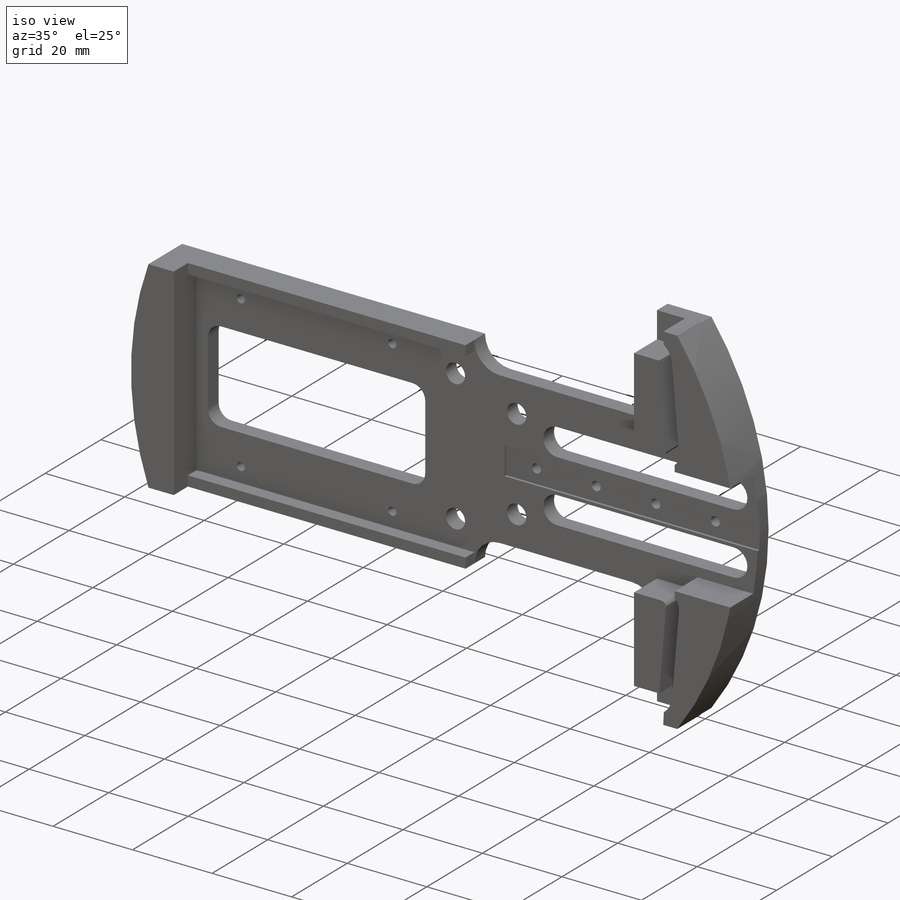
[diagram: iso view]
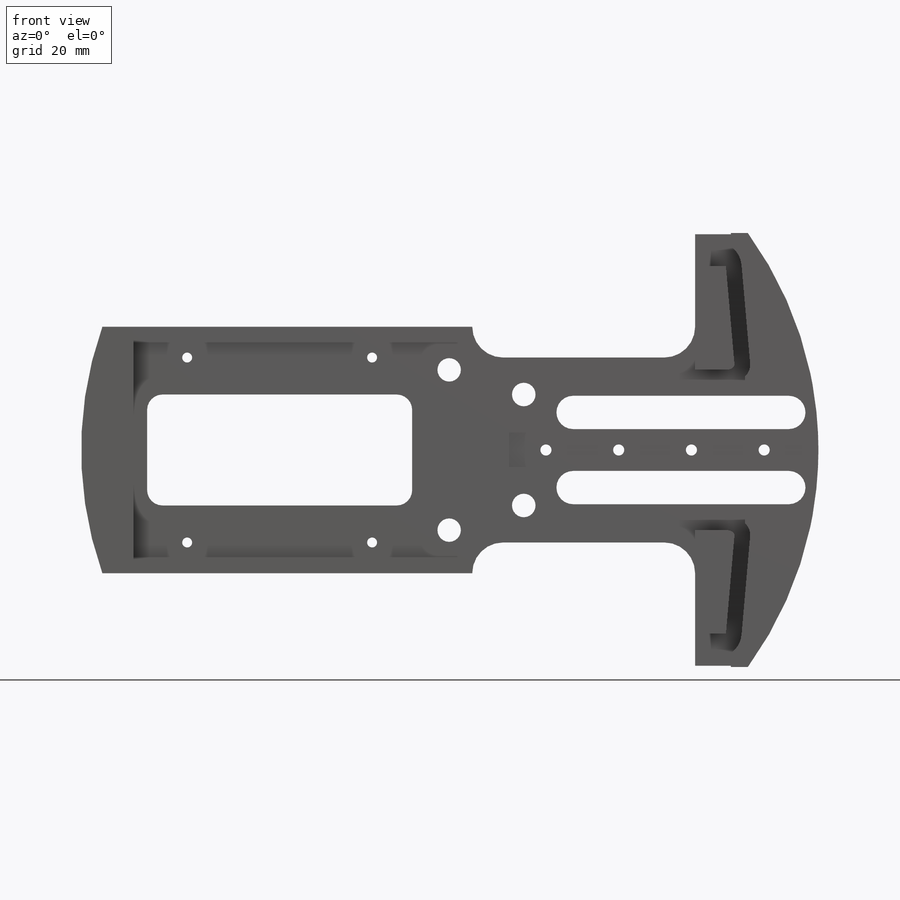
[diagram: front view]
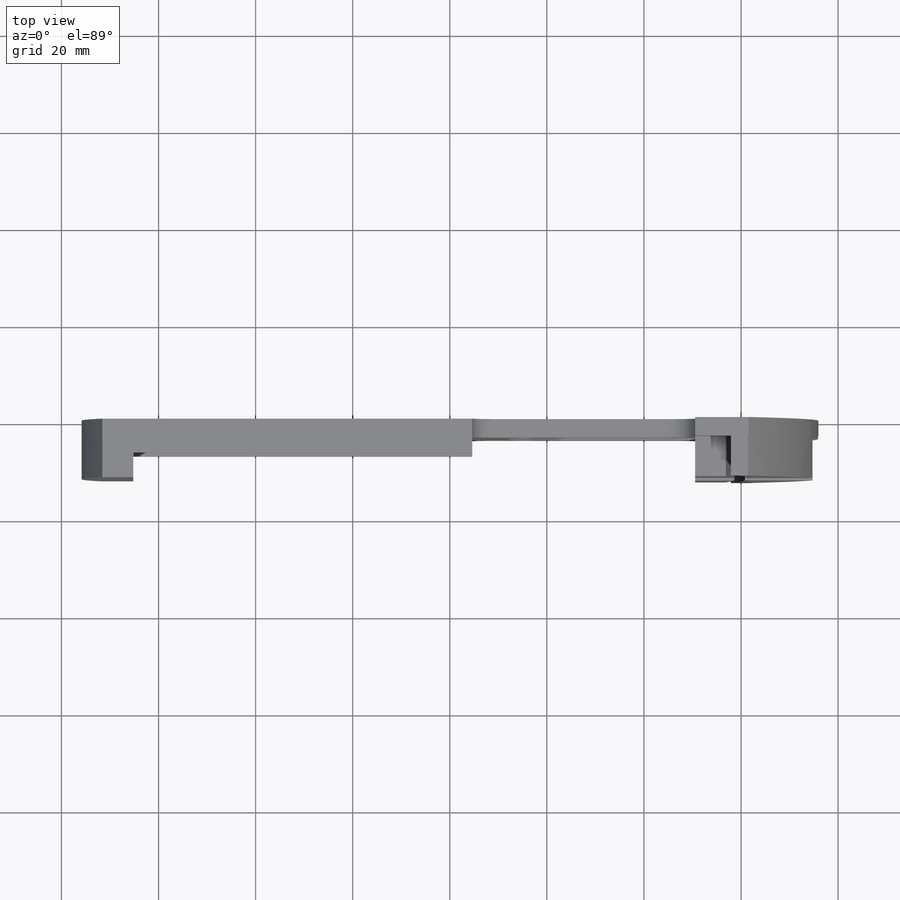
[diagram: top view]
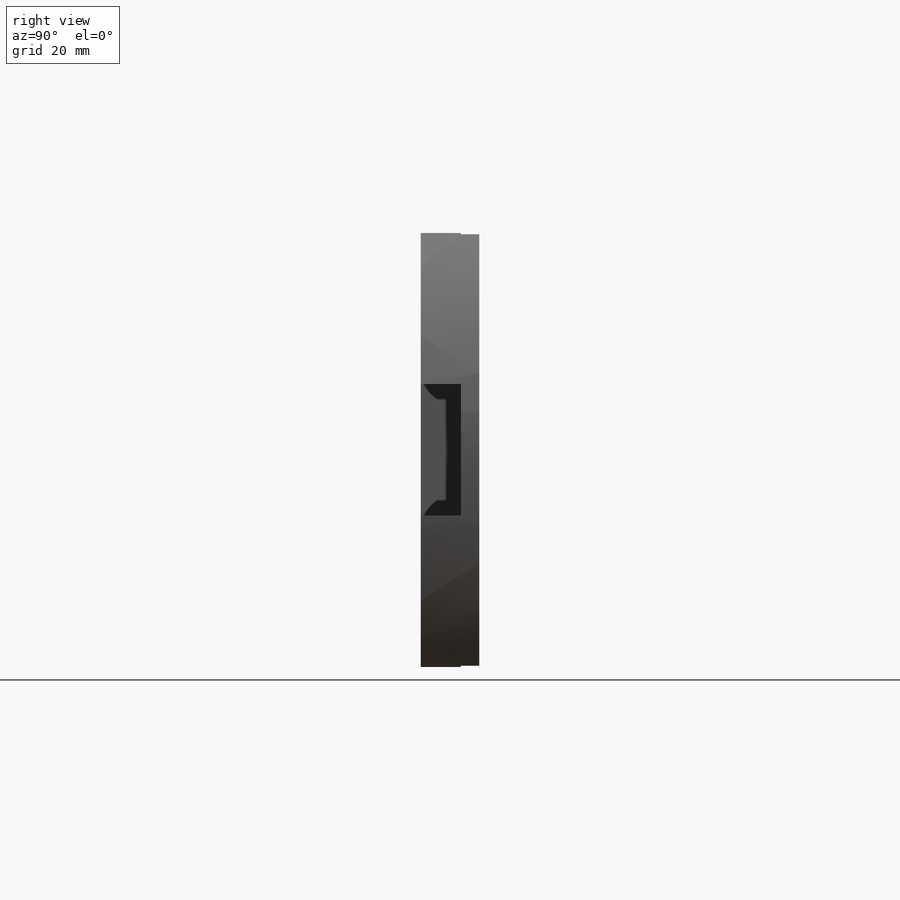
[diagram: right view]
SOLIDWORKS PART (.sldprt)
format: sldprt  version: not decoded by parser v0  size: 551,936 bytes
history: native  units: mm
features: sketch x13, cut_extrude x7, extrude x4, material x1, plane x1, mirror x1 (+13 scaffold rows collapsed)
feature tree (40):
  scaffold x13  (default folders/planes/origin — collapsed)
  material  "Material <not specified>"
  sketch  "Sketch1"  dims[c1.D1=75.946mm c1.D8=151.892mm c1.D11=75.946mm c1.D2=31.75mm c1.D3=38.1mm c1.D4=69.215mm c1.D5=13.97mm c1.D6=88.9mm c2.D4=25.4mm c2.D7=39.624mm c2.D3=44.45mm c2.D2=76.2mm c3.D3=6.35mm c3.D5=6.35mm c3.D7=~10.44057mm c4.D3=6.35mm c4.D5=50.8mm c4.D7=6.35mm c4.D9=6.35mm c4.D10=6.35mm c4.D11=31.75mm]
  extrude  "Boss-Extrude1"  Depth=3.81mm
  sketch  "Sketch2"  dims[c1.D6=75.946mm c1.D1=17.78mm c1.D2=~15.69974mm c1.D3=~9.461872mm c2.D3=85.0213deg c2.D4=1.6129mm c2.D5=20.32mm c2.D6=~0.650321mm c2.D7=44.704mm c2.D8=44.704mm c2.D9=25.4mm]
  extrude  "Boss-Extrude2"  Depth=8.255mm
  sketch  "Sketch3"  dims[c1.D1=7.1mm c1.D2=64.77mm c1.D3=7.1mm c2.D3=90.0deg c3.D3=38.354mm c3.D4=13.081mm]
  cut_extrude  "Cut-Extrude1"  Depth=0.635mm
  sketch  "Sketch6"
  sketch  "Sketch7"  dims[c1.D1=76.2mm c2.D1=~35.92082deg c2.D2=76.2mm c3.D1=76.2mm c4.D1=30.0deg]
  plane  "Plane2"
  sketch  "Sketch9"  dims[D1=6.858mm D2=0.762mm D3=44.45mm D4=74.93mm D5=5.08mm]
  cut_extrude  "Cut-Extrude4"  [1 undecoded]
  sketch  "Sketch10"  dims[c1.D1=3.175mm c1.D2=3.175mm c2.D1=50.8mm c2.D2=63.5mm c2.D3=31.75mm c2.D4=31.75mm c3.D1=29.21mm c3.D2=50.546mm c3.D3=54.61mm c3.D4=58.293mm c3.D5=54.61mm c4.D3=6.35mm c4.D5=6.35mm c4.D1=16.51mm c5.D3=48.26mm c5.D5=3.175mm c5.D6=3.175mm]
  cut_extrude  "Cut-Extrude5"  [1 undecoded]
  sketch  "Sketch12"  dims[D2=4.8514mm D1=35.306mm D3=11.43mm]
  cut_extrude  "Cut-Extrude6"  [1 undecoded]
  sketch  "Sketch4"  dims[c1.D2=2.286mm c1.D4=2.286mm c1.D1=7.62mm c2.D4=14.986mm c2.D5=19.812mm c2.D3=4.0]
  cut_extrude  "Cut-Extrude2"  Depth=11.43mm
  sketch  "Sketch17"  dims[c1.D1=4.826mm c1.D2=4.826mm c1.D4=4.826mm c2.D1=48.26mm c2.D2=16.51mm c2.D3=7.62mm c2.D4=~8.753061mm]
  cut_extrude  "Cut-Extrude9"  [1 undecoded]
  sketch  "Sketch19"  dims[D2=151.892mm D1=6.35mm]
  extrude  "Boss-Extrude5"  Depth=8.255mm
  sketch  "Sketch20"  dims[D1=3.175mm]
  extrude  "Boss-Extrude6"  Depth=2.54mm
  mirror  "Mirror1"
  sketch  "Sketch21"  dims[D3=2.0447mm D5=2.0447mm D6=2.0447mm D7=2.0447mm D1=38.1mm D2=38.1mm D4=16.51mm]
  cut_extrude  "Cut-Extrude10"  [1 undecoded]
decode coverage: 18 of 25 modeling features carry decoded parameters
note: ~ marks probable driven/reference dimensions
note: 5 parameter values undecoded
summary: no parameter record found for 5 features
note: suppression state not decoded; provenance and decode notes live in map.json
